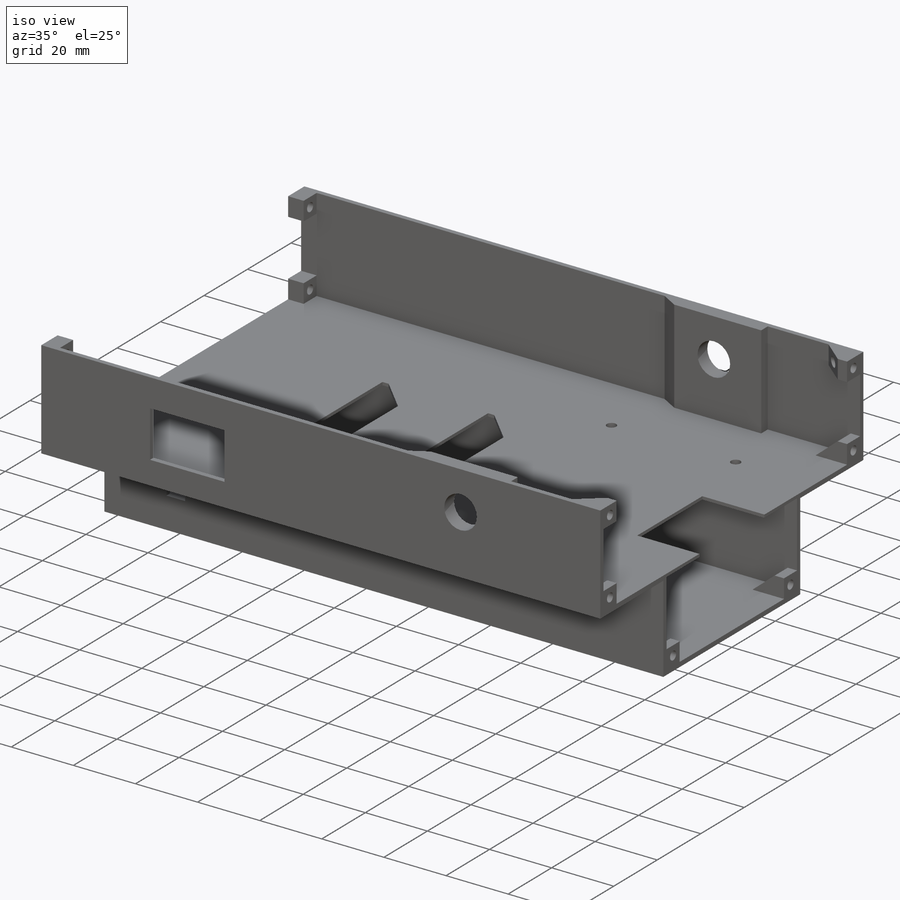
[diagram: iso view]
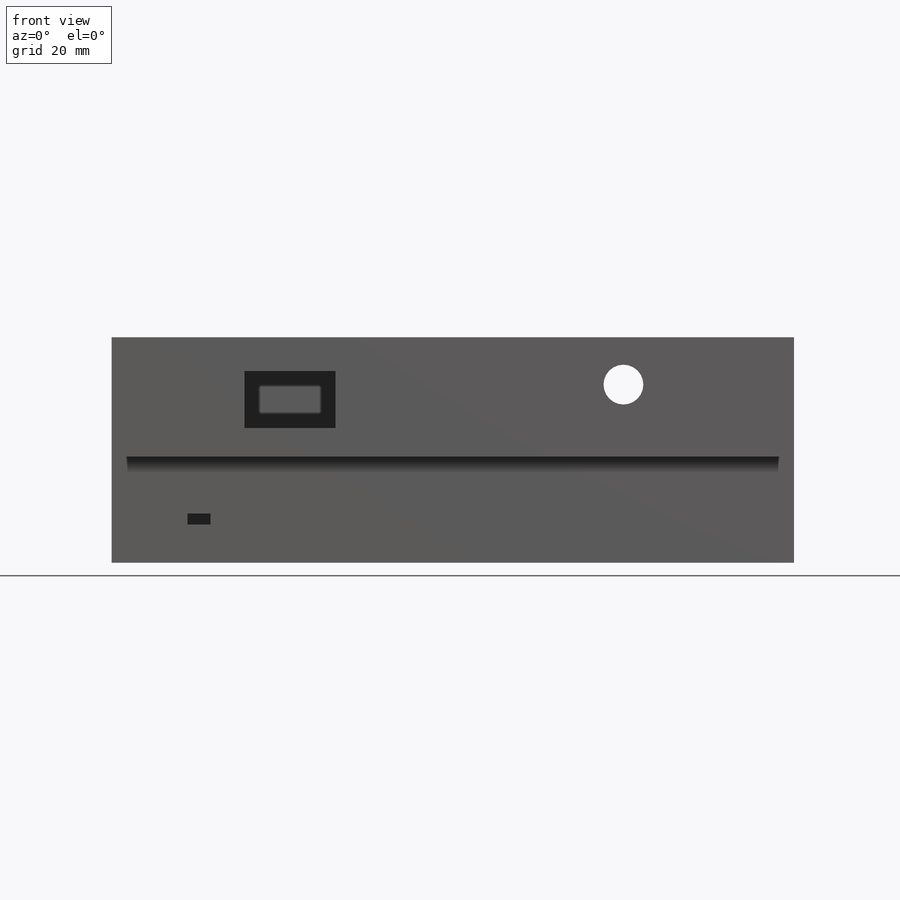
[diagram: front view]
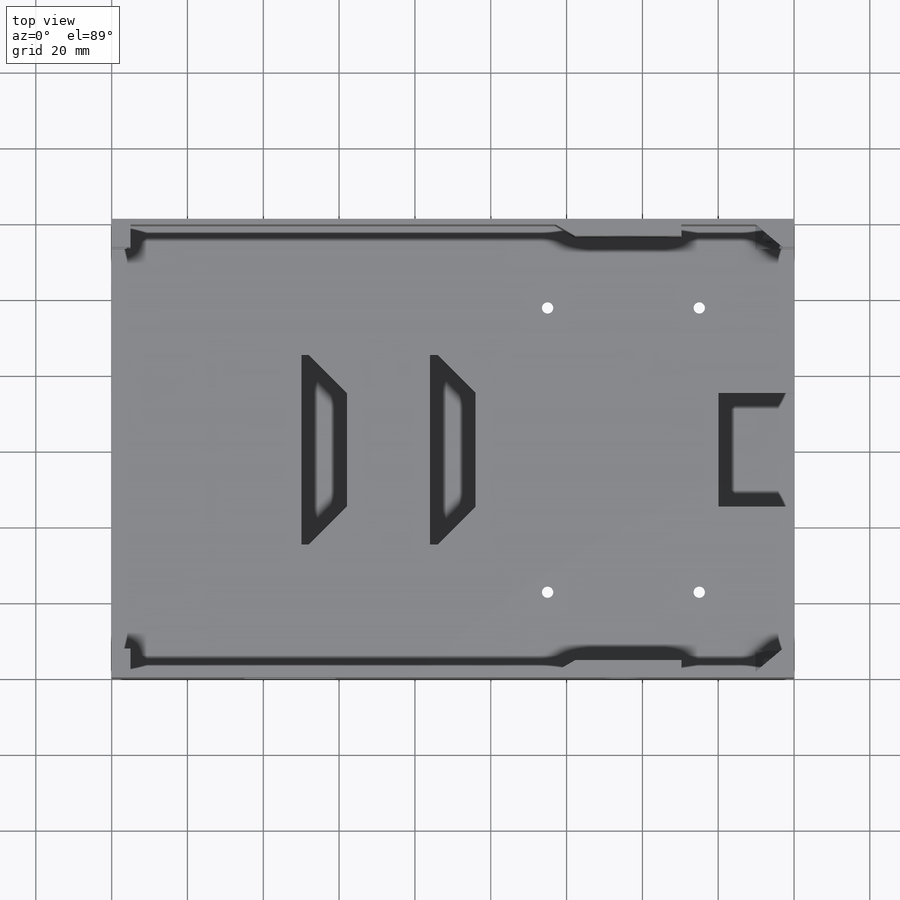
[diagram: top view]
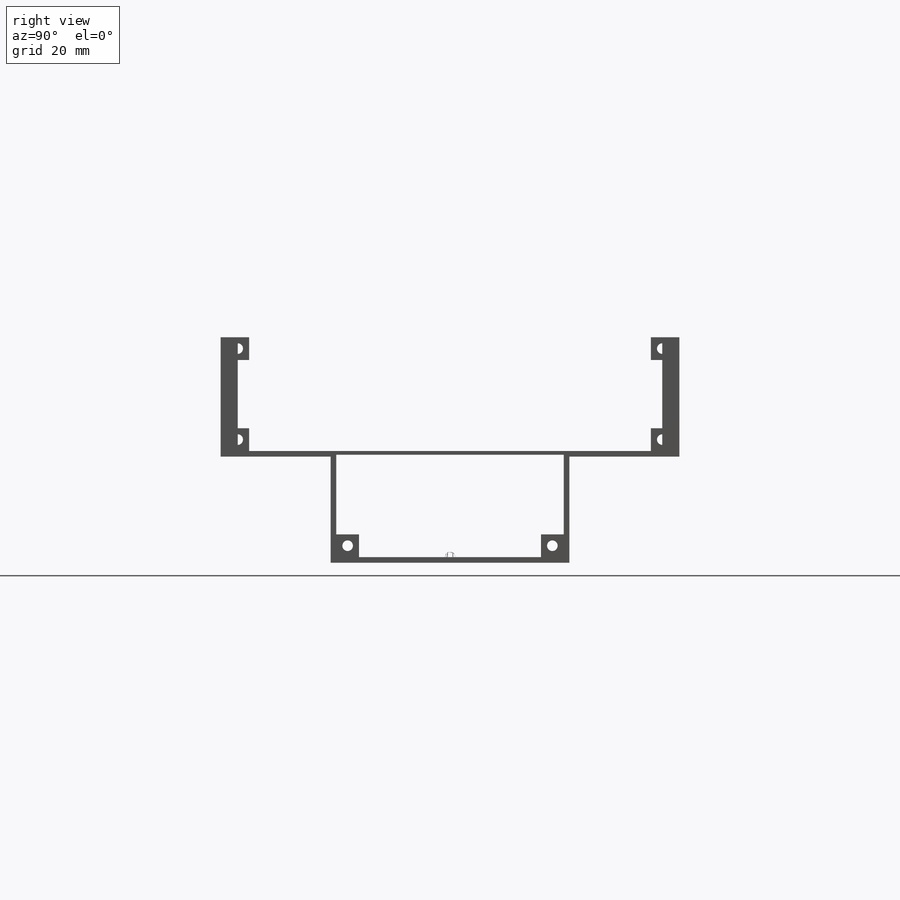
[diagram: right view]
SOLIDWORKS PART (.sldprt)
format: sldprt  version: not decoded by parser v0  size: 706,048 bytes
history: native  units: mm
features: sketch x21, cut_extrude x10, extrude x7, plane x3, mirror x2, material x1, hole x1 (+10 scaffold rows collapsed)
feature tree (55):
  scaffold x10  (default folders/planes/origin — collapsed)
  material  "ABS"
  plane  "Přední rovina"
  plane  "Horní rovina"
  plane  "Pravá rovina"
  sketch  "Skica4"  dims[c1.D1=60.0mm c1.D2=28.0mm c1.D3=29.0mm c1.D4=30.0mm c2.D1=180.0mm c2.D5=1.5mm c2.D6=1.0mm c2.D7=5.0mm]
  mirror  "Zrcadlit1"
  sketch  "Skica5"  dims[D1=1.0mm]
  extrude  "Přidat vysunutím3"  [1 undecoded]
  sketch  "Skica6"  dims[D1=40.0mm D2=30.0mm]
  cut_extrude  "Odebrat vysunutím2"  Depth=3mm
  sketch  "Skica7"  dims[D1=6.0mm D2=6.0mm]
  extrude  "Přidat vysunutím4"  Depth=5mm
  sketch  "Skica8"  dims[D1=2.8mm]
  cut_extrude  "Odebrat vysunutím3"  Depth=5mm
  sketch  "Skica11"  dims[D1=1.0mm D2=4.0mm D3=6.0mm]
  extrude  "Přidat vysunutím6"  Depth=25mm
  sketch  "Skica9"  dims[c1.D1=~6.641897mm c1.D2=10.5mm c2.D1=47.0mm c2.D3=45.0mm]
  cut_extrude  "Odebrat vysunutím4"  [1 undecoded]
  sketch  "Skica15"  dims[c1.D1=3.0mm c1.D2=~22.988298mm c2.D2=40.0deg]
  extrude  "Přidat vysunutím7"  Depth=6mm
  sketch  "Skica16"
  cut_extrude  "Odebrat vysunutím13"  Depth=10mm
  sketch  "Skica17"
  extrude  "Přidat vysunutím8"  Depth=6mm
  sketch  "Skica18"
  cut_extrude  "Odebrat vysunutím14"  Depth=16mm
  sketch  "Skica19"
  extrude  "Přidat vysunutím9"  Depth=6mm
  sketch  "Skica20"
  cut_extrude  "Odebrat vysunutím15"  Depth=16mm
  mirror  "Zrcadlit2"
  sketch  "Skica21"  dims[c1.D1=20.0mm c1.D2=70.0mm c1.D3=5.0mm c1.D4=6.0mm c1.D5=25.0mm c1.D6=40.0mm c2.D6=70.0deg c2.D1=50.0mm c2.D2=12.0mm c2.D3=50.0mm c2.D4=22.0mm]
  cut_extrude  "Odebrat vysunutím16"  Depth=8mm
  sketch  "Skica22"  dims[c1.D1=~4.764921mm c2.D1=30.0deg c2.D2=3.0mm c2.D3=10.0mm c2.D4=28.0mm]
  extrude  "Přidat vysunutím10"  [1 undecoded]
  sketch  "Skica23"
  cut_extrude  "Odebrat vysunutím17"  [1 undecoded]
  sketch  "Skica26"
  hole  "Díry pro kolík, velikost mm1"  Diameter=3mm Depth=10mm
  sketch  "Skica28"
  sketch  "Skica27"  dims[hole-wizard template sketch: 46 standard entries collapsed; hole parameters kept: c15.Průměr díry=3.0mm c15.Hloubka díry=10.0mm c15.D3=~14.816244mm c15.Úhel vrtání=118.0deg]
  sketch  "Skica29"  dims[D1=20.0mm D2=10.0mm D3=3.0mm D4=6.0mm]
  cut_extrude  "Odebrat vysunutím18"  Depth=10mm
  sketch  "Skica30"  dims[D1=24.0mm D2=15.0mm D3=9.0mm D4=35.0mm]
  cut_extrude  "Odebrat vysunutím19"  Depth=5mm
decode coverage: 27 of 41 modeling features carry decoded parameters
note: ~ marks probable driven/reference dimensions
note: 4 parameter values undecoded
summary: no parameter record found for 4 features
note: suppression state not decoded; provenance and decode notes live in map.json
